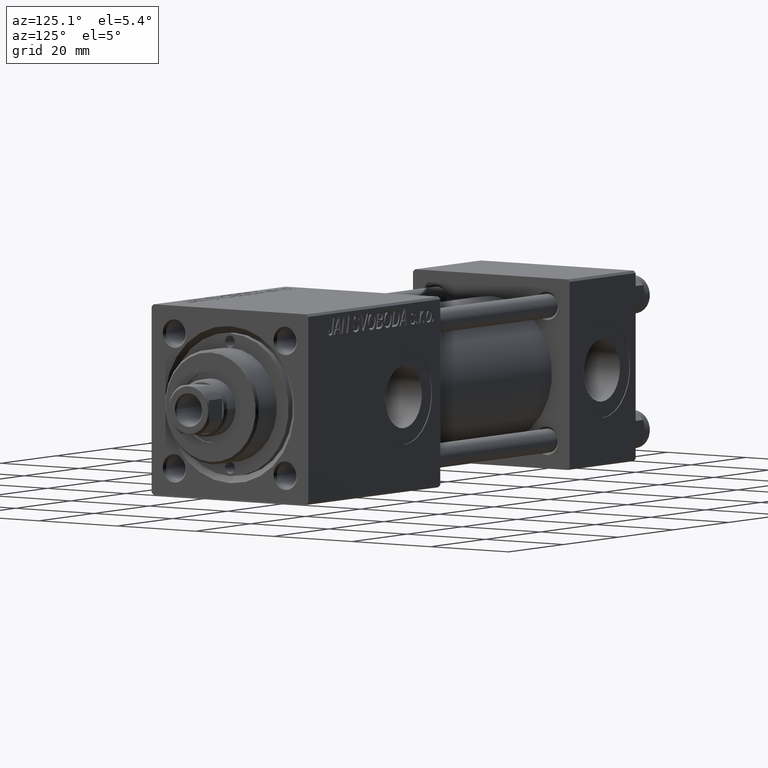
[diagram: clean part render]
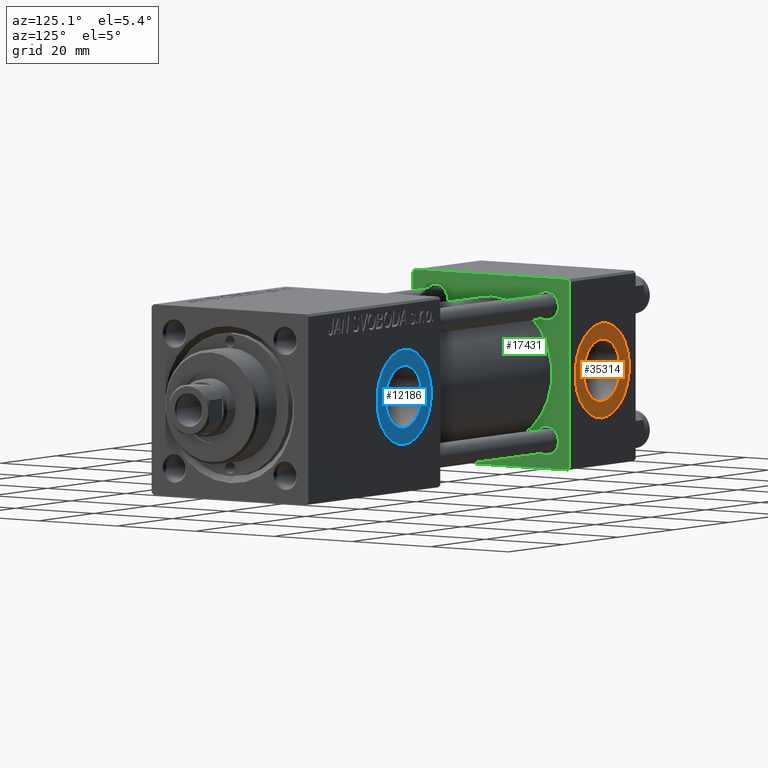
[diagram: same view with three faces highlighted in distinct colors, each labeled with its STEP entity id]
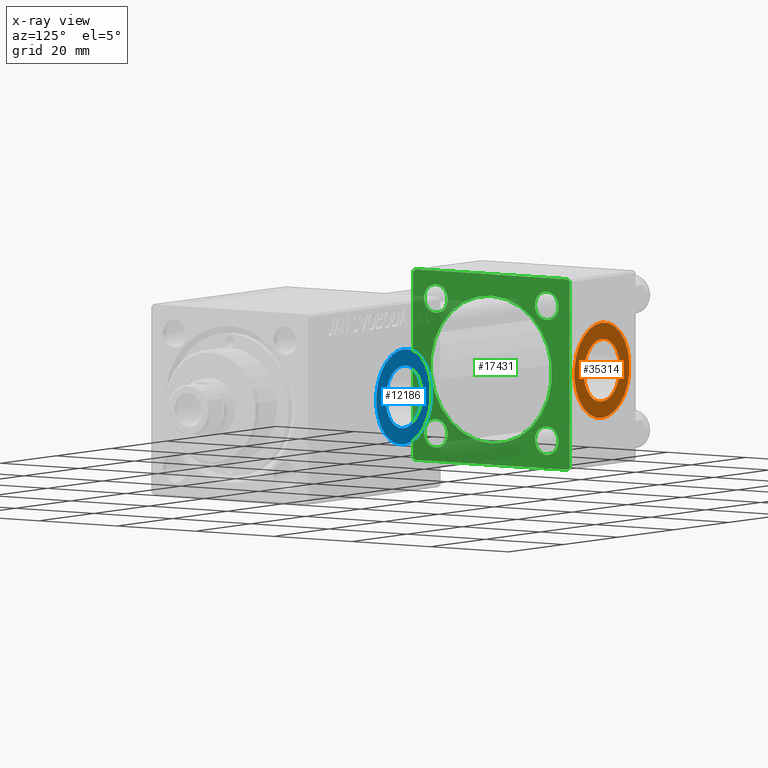
[diagram: x-ray of the same camera — body ghosted, the three highlighted faces saturated]
A machine part, auxiliary view with three faces highlighted in distinct colors.
The next image is the same camera in x-ray (body ghosted, the three faces saturated) — at least one of them is partly hidden behind the body in this view.
Their STEP definitions:

[orange] entity #35314 — the highlighted planar face has unit normal (0, 1, 0).
#311 = CARTESIAN_POINT ( 'NONE',  ( 12.00000000000000000, 19.80000000000000071, 0.000000000000000000 ) ) ;
#375 = DIRECTION ( 'NONE',  ( 0.000000000000000000, -0.000000000000000000, 1.000000000000000000 ) ) ;
#735 = CIRCLE ( 'NONE', #25903, 10.00000000000000000 ) ;
#3530 = CARTESIAN_POINT ( 'NONE',  ( 12.00000000000000000, 19.80000000000000071, 6.579999999999998295 ) ) ;
#4204 = PLANE ( 'NONE',  #6040 ) ;
#5149 = DIRECTION ( 'NONE',  ( 0.000000000000000000, 1.000000000000000000, 0.000000000000000000 ) ) ;
#6040 = AXIS2_PLACEMENT_3D ( 'NONE', #19723, #35227, #375 ) ;
#6391 = CARTESIAN_POINT ( 'NONE',  ( 12.00000000000000000, 19.80000000000000071, 10.00000000000000000 ) ) ;
#7938 = DIRECTION ( 'NONE',  ( 0.000000000000000000, 1.000000000000000000, 0.000000000000000000 ) ) ;
#8008 = EDGE_LOOP ( 'NONE', ( #37336, #43936 ) ) ;
#8931 = AXIS2_PLACEMENT_3D ( 'NONE', #14570, #18645, #15072 ) ;
#9729 = CIRCLE ( 'NONE', #8931, 6.579999999999998295 ) ;
#13494 = ORIENTED_EDGE ( 'NONE', *, *, #50130, .T. ) ;
#14003 = EDGE_CURVE ( 'NONE', #29084, #22923, #21956, .T. ) ;
#14570 = CARTESIAN_POINT ( 'NONE',  ( 12.00000000000000000, 19.80000000000000071, 0.000000000000000000 ) ) ;
#14770 = EDGE_CURVE ( 'NONE', #22923, #29084, #9729, .T. ) ;
#15072 = DIRECTION ( 'NONE',  ( 0.000000000000000000, 0.000000000000000000, 1.000000000000000000 ) ) ;
#18645 = DIRECTION ( 'NONE',  ( 0.000000000000000000, 1.000000000000000000, 0.000000000000000000 ) ) ;
#19723 = CARTESIAN_POINT ( 'NONE',  ( 12.00000000000000000, 19.80000000000000071, 0.000000000000000000 ) ) ;
#19862 = CIRCLE ( 'NONE', #26346, 10.00000000000000000 ) ;
#20550 = CARTESIAN_POINT ( 'NONE',  ( 12.00000000000000178, 19.80000000000000071, -10.00000000000000000 ) ) ;
#21419 = CARTESIAN_POINT ( 'NONE',  ( 12.00000000000000000, 19.80000000000000071, 0.000000000000000000 ) ) ;
#21953 = ORIENTED_EDGE ( 'NONE', *, *, #34535, .T. ) ;
#21956 = CIRCLE ( 'NONE', #26823, 6.579999999999998295 ) ;
#22923 = VERTEX_POINT ( 'NONE', #40389 ) ;
#23475 = DIRECTION ( 'NONE',  ( 0.000000000000000000, 0.000000000000000000, 1.000000000000000000 ) ) ;
#25903 = AXIS2_PLACEMENT_3D ( 'NONE', #21419, #5149, #32111 ) ;
#26346 = AXIS2_PLACEMENT_3D ( 'NONE', #46034, #38920, #41972 ) ;
#26823 = AXIS2_PLACEMENT_3D ( 'NONE', #311, #7938, #23475 ) ;
#29084 = VERTEX_POINT ( 'NONE', #3530 ) ;
#32111 = DIRECTION ( 'NONE',  ( 0.000000000000000000, 0.000000000000000000, 1.000000000000000000 ) ) ;
#34535 = EDGE_CURVE ( 'NONE', #45143, #48870, #19862, .T. ) ;
#35227 = DIRECTION ( 'NONE',  ( 0.000000000000000000, 1.000000000000000000, 0.000000000000000000 ) ) ;
#35314 = ADVANCED_FACE ( 'NONE', ( #43346, #42593 ), #4204, .T. ) ;
#37336 = ORIENTED_EDGE ( 'NONE', *, *, #14003, .F. ) ;
#38920 = DIRECTION ( 'NONE',  ( 0.000000000000000000, 1.000000000000000000, 0.000000000000000000 ) ) ;
#40389 = CARTESIAN_POINT ( 'NONE',  ( 12.00000000000000000, 19.80000000000000071, -6.579999999999998295 ) ) ;
#41972 = DIRECTION ( 'NONE',  ( 0.000000000000000000, 0.000000000000000000, 1.000000000000000000 ) ) ;
#42593 = FACE_OUTER_BOUND ( 'NONE', #49129, .T. ) ;
#43346 = FACE_BOUND ( 'NONE', #8008, .T. ) ;
#43936 = ORIENTED_EDGE ( 'NONE', *, *, #14770, .F. ) ;
#45143 = VERTEX_POINT ( 'NONE', #20550 ) ;
#46034 = CARTESIAN_POINT ( 'NONE',  ( 12.00000000000000000, 19.80000000000000071, 0.000000000000000000 ) ) ;
#48870 = VERTEX_POINT ( 'NONE', #6391 ) ;
#49129 = EDGE_LOOP ( 'NONE', ( #13494, #21953 ) ) ;
#50130 = EDGE_CURVE ( 'NONE', #48870, #45143, #735, .T. ) ;

[blue] entity #12186 — the highlighted planar face has unit normal (0, 1, 0).
#310 = VERTEX_POINT ( 'NONE', #9725 ) ;
#1794 = ORIENTED_EDGE ( 'NONE', *, *, #30656, .F. ) ;
#2294 = AXIS2_PLACEMENT_3D ( 'NONE', #37583, #7056, #14683 ) ;
#2331 = CARTESIAN_POINT ( 'NONE',  ( 84.00000000000000000, 19.79999999999999716, -6.580000000001541061 ) ) ;
#4337 = CARTESIAN_POINT ( 'NONE',  ( 84.00000000000000000, 19.79999999999999716, 0.000000000000000000 ) ) ;
#4845 = EDGE_CURVE ( 'NONE', #26441, #50228, #16785, .T. ) ;
#7056 = DIRECTION ( 'NONE',  ( 0.000000000000000000, 1.000000000000000000, 0.000000000000000000 ) ) ;
#7384 = CIRCLE ( 'NONE', #13867, 10.00000000000153300 ) ;
#8352 = ORIENTED_EDGE ( 'NONE', *, *, #20276, .T. ) ;
#9419 = EDGE_CURVE ( 'NONE', #310, #31996, #43713, .T. ) ;
#9725 = CARTESIAN_POINT ( 'NONE',  ( 84.00000000000000000, 19.79999999999999716, -10.00000000000153300 ) ) ;
#11791 = DIRECTION ( 'NONE',  ( 0.000000000000000000, 1.000000000000000000, 0.000000000000000000 ) ) ;
#12186 = ADVANCED_FACE ( 'NONE', ( #46240, #30727 ), #50297, .T. ) ;
#12849 = DIRECTION ( 'NONE',  ( 0.000000000000000000, 1.000000000000000000, 0.000000000000000000 ) ) ;
#13343 = CARTESIAN_POINT ( 'NONE',  ( 84.00000000000000000, 19.79999999999999716, 0.000000000000000000 ) ) ;
#13867 = AXIS2_PLACEMENT_3D ( 'NONE', #13343, #12849, #20502 ) ;
#14683 = DIRECTION ( 'NONE',  ( 0.000000000000000000, 0.000000000000000000, 1.000000000000000000 ) ) ;
#14839 = AXIS2_PLACEMENT_3D ( 'NONE', #34437, #11791, #26814 ) ;
#16031 = DIRECTION ( 'NONE',  ( 0.000000000000000000, 1.000000000000000000, 0.000000000000000000 ) ) ;
#16785 = CIRCLE ( 'NONE', #43578, 6.580000000001541061 ) ;
#20276 = EDGE_CURVE ( 'NONE', #31996, #310, #7384, .T. ) ;
#20502 = DIRECTION ( 'NONE',  ( 0.000000000000000000, 0.000000000000000000, 1.000000000000000000 ) ) ;
#26046 = EDGE_LOOP ( 'NONE', ( #44237, #1794 ) ) ;
#26441 = VERTEX_POINT ( 'NONE', #29216 ) ;
#26814 = DIRECTION ( 'NONE',  ( 0.000000000000000000, 0.000000000000000000, 1.000000000000000000 ) ) ;
#26979 = CARTESIAN_POINT ( 'NONE',  ( 84.00000000000000000, 19.79999999999999716, 10.00000000000153300 ) ) ;
#27418 = CARTESIAN_POINT ( 'NONE',  ( 84.00000000000000000, 19.79999999999999716, 0.000000000000000000 ) ) ;
#29216 = CARTESIAN_POINT ( 'NONE',  ( 84.00000000000000000, 19.79999999999999716, 6.580000000001541061 ) ) ;
#30656 = EDGE_CURVE ( 'NONE', #50228, #26441, #38407, .T. ) ;
#30727 = FACE_OUTER_BOUND ( 'NONE', #39461, .T. ) ;
#31996 = VERTEX_POINT ( 'NONE', #26979 ) ;
#33218 = AXIS2_PLACEMENT_3D ( 'NONE', #27418, #34295, #49794 ) ;
#34295 = DIRECTION ( 'NONE',  ( 0.000000000000000000, 1.000000000000000000, 0.000000000000000000 ) ) ;
#34437 = CARTESIAN_POINT ( 'NONE',  ( 84.00000000000000000, 19.79999999999999716, 0.000000000000000000 ) ) ;
#37583 = CARTESIAN_POINT ( 'NONE',  ( 84.00000000000000000, 19.79999999999999716, 0.000000000000000000 ) ) ;
#38407 = CIRCLE ( 'NONE', #14839, 6.580000000001541061 ) ;
#39461 = EDGE_LOOP ( 'NONE', ( #8352, #42309 ) ) ;
#40154 = DIRECTION ( 'NONE',  ( 0.000000000000000000, 0.000000000000000000, 1.000000000000000000 ) ) ;
#42309 = ORIENTED_EDGE ( 'NONE', *, *, #9419, .T. ) ;
#43578 = AXIS2_PLACEMENT_3D ( 'NONE', #4337, #16031, #40154 ) ;
#43713 = CIRCLE ( 'NONE', #2294, 10.00000000000153300 ) ;
#44237 = ORIENTED_EDGE ( 'NONE', *, *, #4845, .F. ) ;
#46240 = FACE_BOUND ( 'NONE', #26046, .T. ) ;
#49794 = DIRECTION ( 'NONE',  ( 0.000000000000000000, -0.000000000000000000, 1.000000000000000000 ) ) ;
#50228 = VERTEX_POINT ( 'NONE', #2331 ) ;
#50297 = PLANE ( 'NONE',  #33218 ) ;

[green] entity #17431 — the highlighted planar face has unit normal (-1, 0, 0).
#701 = DIRECTION ( 'NONE',  ( 0.000000000000000000, 0.000000000000000000, 1.000000000000000000 ) ) ;
#1073 = CARTESIAN_POINT ( 'NONE',  ( 24.00000000000000000, -14.14999999999999503, -14.15000000000000391 ) ) ;
#1614 = CIRCLE ( 'NONE', #13021, 2.999999999999973355 ) ;
#1698 = DIRECTION ( 'NONE',  ( -1.000000000000000000, -0.000000000000000000, -0.000000000000000000 ) ) ;
#1701 = VERTEX_POINT ( 'NONE', #5565 ) ;
#1783 = VECTOR ( 'NONE', #14139, 1000.000000000000114 ) ;
#2804 = FACE_BOUND ( 'NONE', #34736, .T. ) ;
#2846 = DIRECTION ( 'NONE',  ( -1.000000000000000000, -0.000000000000000000, -0.000000000000000000 ) ) ;
#3393 = AXIS2_PLACEMENT_3D ( 'NONE', #30706, #6804, #33762 ) ;
#4054 = CARTESIAN_POINT ( 'NONE',  ( 24.00000000000000000, -14.14999999999999503, 11.15000000000000036 ) ) ;
#5107 = ORIENTED_EDGE ( 'NONE', *, *, #18325, .F. ) ;
#5416 = ORIENTED_EDGE ( 'NONE', *, *, #8101, .T. ) ;
#5565 = CARTESIAN_POINT ( 'NONE',  ( 24.00000000000000000, -20.00000000000000000, -19.49999999999999645 ) ) ;
#5729 = ORIENTED_EDGE ( 'NONE', *, *, #15577, .T. ) ;
#5783 = DIRECTION ( 'NONE',  ( 0.000000000000000000, 0.000000000000000000, 1.000000000000000000 ) ) ;
#5959 = ORIENTED_EDGE ( 'NONE', *, *, #17569, .T. ) ;
#6006 = LINE ( 'NONE', #33219, #1783 ) ;
#6374 = EDGE_CURVE ( 'NONE', #13730, #45378, #19929, .T. ) ;
#6804 = DIRECTION ( 'NONE',  ( -1.000000000000000000, -0.000000000000000000, -0.000000000000000000 ) ) ;
#6873 = FACE_OUTER_BOUND ( 'NONE', #21938, .T. ) ;
#6905 = DIRECTION ( 'NONE',  ( 0.000000000000000000, 0.000000000000000000, 1.000000000000000000 ) ) ;
#7128 = FACE_BOUND ( 'NONE', #19708, .T. ) ;
#7394 = DIRECTION ( 'NONE',  ( 0.000000000000000000, 0.000000000000000000, -1.000000000000000000 ) ) ;
#7409 = CARTESIAN_POINT ( 'NONE',  ( 24.00000000000000000, -2.602085213965210642E-15, 0.000000000000000000 ) ) ;
#7622 = FACE_BOUND ( 'NONE', #12299, .T. ) ;
#7667 = VERTEX_POINT ( 'NONE', #19926 ) ;
#7707 = VERTEX_POINT ( 'NONE', #43305 ) ;
#7915 = EDGE_CURVE ( 'NONE', #15917, #16160, #30559, .T. ) ;
#8101 = EDGE_CURVE ( 'NONE', #7667, #44547, #36320, .T. ) ;
#8317 = ORIENTED_EDGE ( 'NONE', *, *, #7915, .T. ) ;
#8930 = CIRCLE ( 'NONE', #15452, 15.50000000000000000 ) ;
#9110 = AXIS2_PLACEMENT_3D ( 'NONE', #11285, #27304, #34179 ) ;
#9323 = CARTESIAN_POINT ( 'NONE',  ( 24.00000000000000000, 14.14999999999999858, 14.15000000000000036 ) ) ;
#9479 = VECTOR ( 'NONE', #11289, 999.9999999999998863 ) ;
#11213 = LINE ( 'NONE', #15024, #40708 ) ;
#11285 = CARTESIAN_POINT ( 'NONE',  ( 24.00000000000000000, -14.14999999999999503, 14.15000000000000391 ) ) ;
#11289 = DIRECTION ( 'NONE',  ( 0.000000000000000000, -0.7071067811865425767, 0.7071067811865525687 ) ) ;
#11448 = DIRECTION ( 'NONE',  ( -1.000000000000000000, 0.000000000000000000, -0.000000000000000000 ) ) ;
#11490 = VERTEX_POINT ( 'NONE', #21511 ) ;
#12299 = EDGE_LOOP ( 'NONE', ( #42506, #5729 ) ) ;
#12374 = CIRCLE ( 'NONE', #9110, 3.000000000000004441 ) ;
#12415 = DIRECTION ( 'NONE',  ( 0.000000000000000000, 8.673617379884036705E-17, -1.000000000000000000 ) ) ;
#12626 = VERTEX_POINT ( 'NONE', #13309 ) ;
#13021 = AXIS2_PLACEMENT_3D ( 'NONE', #9323, #1698, #5783 ) ;
#13289 = EDGE_LOOP ( 'NONE', ( #5959, #28803 ) ) ;
#13309 = CARTESIAN_POINT ( 'NONE',  ( 24.00000000000000000, -14.14999999999999503, -11.15000000000000036 ) ) ;
#13413 = CARTESIAN_POINT ( 'NONE',  ( 24.00000000000000000, 20.00000000000000000, 20.00000000000000000 ) ) ;
#13730 = VERTEX_POINT ( 'NONE', #50207 ) ;
#14139 = DIRECTION ( 'NONE',  ( -0.000000000000000000, -0.7071067811865500152, -0.7071067811865451302 ) ) ;
#14285 = DIRECTION ( 'NONE',  ( 0.000000000000000000, 0.000000000000000000, 1.000000000000000000 ) ) ;
#15024 = CARTESIAN_POINT ( 'NONE',  ( 24.00000000000000000, 20.00000000000000000, 20.00000000000000000 ) ) ;
#15452 = AXIS2_PLACEMENT_3D ( 'NONE', #7409, #34626, #6905 ) ;
#15520 = VECTOR ( 'NONE', #45640, 1000.000000000000000 ) ;
#15577 = EDGE_CURVE ( 'NONE', #12626, #22547, #16288, .T. ) ;
#15726 = CARTESIAN_POINT ( 'NONE',  ( 24.00000000000000000, -14.14999999999999503, 14.15000000000000391 ) ) ;
#15917 = VERTEX_POINT ( 'NONE', #25311 ) ;
#16160 = VERTEX_POINT ( 'NONE', #50144 ) ;
#16212 = CARTESIAN_POINT ( 'NONE',  ( 24.00000000000000000, 20.00000000000000000, -20.00000000000000711 ) ) ;
#16288 = CIRCLE ( 'NONE', #33215, 3.000000000000004441 ) ;
#16834 = DIRECTION ( 'NONE',  ( 0.000000000000000000, 0.000000000000000000, 1.000000000000000000 ) ) ;
#16993 = DIRECTION ( 'NONE',  ( -1.000000000000000000, -0.000000000000000000, -0.000000000000000000 ) ) ;
#17289 = CIRCLE ( 'NONE', #21335, 15.50000000000000000 ) ;
#17431 = ADVANCED_FACE ( 'NONE', ( #7622, #2804, #7128, #18318, #42722, #6873 ), #42221, .F. ) ;
#17569 = EDGE_CURVE ( 'NONE', #32170, #32059, #31669, .T. ) ;
#17852 = DIRECTION ( 'NONE',  ( 1.000000000000000000, 0.000000000000000000, 0.000000000000000000 ) ) ;
#18106 = CARTESIAN_POINT ( 'NONE',  ( 24.00000000000000000, -2.602085213965210642E-15, 0.000000000000000000 ) ) ;
#18318 = FACE_BOUND ( 'NONE', #13289, .T. ) ;
#18325 = EDGE_CURVE ( 'NONE', #11490, #38963, #8930, .T. ) ;
#18386 = VERTEX_POINT ( 'NONE', #43012 ) ;
#18956 = EDGE_CURVE ( 'NONE', #32059, #32170, #1614, .T. ) ;
#19431 = CARTESIAN_POINT ( 'NONE',  ( 24.00000000000000000, 19.50000000000000000, 20.00000000000000000 ) ) ;
#19708 = EDGE_LOOP ( 'NONE', ( #20244, #38800 ) ) ;
#19926 = CARTESIAN_POINT ( 'NONE',  ( 24.00000000000000000, 14.14999999999999858, -17.14999999999997726 ) ) ;
#19929 = LINE ( 'NONE', #19431, #9479 ) ;
#20034 = LINE ( 'NONE', #16212, #31146 ) ;
#20244 = ORIENTED_EDGE ( 'NONE', *, *, #29826, .T. ) ;
#20405 = EDGE_CURVE ( 'NONE', #1701, #28661, #41072, .T. ) ;
#21335 = AXIS2_PLACEMENT_3D ( 'NONE', #18106, #17852, #14285 ) ;
#21341 = CARTESIAN_POINT ( 'NONE',  ( 24.00000000000000000, 14.14999999999999858, 11.15000000000002700 ) ) ;
#21511 = CARTESIAN_POINT ( 'NONE',  ( 24.00000000000000000, -7.038826752868131828E-16, -15.50000000000000000 ) ) ;
#21938 = EDGE_LOOP ( 'NONE', ( #47199, #8317, #34388, #36692, #35175, #29597, #45021, #24052 ) ) ;
#22082 = EDGE_CURVE ( 'NONE', #44547, #7667, #48863, .T. ) ;
#22547 = VERTEX_POINT ( 'NONE', #40445 ) ;
#24052 = ORIENTED_EDGE ( 'NONE', *, *, #20405, .T. ) ;
#24060 = EDGE_CURVE ( 'NONE', #13730, #16160, #11213, .T. ) ;
#24168 = CARTESIAN_POINT ( 'NONE',  ( 24.00000000000000000, 14.14999999999999858, 17.14999999999997726 ) ) ;
#24616 = CARTESIAN_POINT ( 'NONE',  ( 24.00000000000000000, -20.00000000000000355, 19.99999999999998934 ) ) ;
#25145 = DIRECTION ( 'NONE',  ( 0.000000000000000000, 0.000000000000000000, 1.000000000000000000 ) ) ;
#25311 = CARTESIAN_POINT ( 'NONE',  ( 24.00000000000000000, 19.50000000000000711, -20.00000000000000711 ) ) ;
#25647 = VECTOR ( 'NONE', #28947, 1000.000000000000000 ) ;
#27075 = ORIENTED_EDGE ( 'NONE', *, *, #30897, .F. ) ;
#27304 = DIRECTION ( 'NONE',  ( -1.000000000000000000, -0.000000000000000000, -0.000000000000000000 ) ) ;
#27920 = DIRECTION ( 'NONE',  ( -1.000000000000000000, -0.000000000000000000, -0.000000000000000000 ) ) ;
#28491 = DIRECTION ( 'NONE',  ( 0.000000000000000000, 0.000000000000000000, 1.000000000000000000 ) ) ;
#28661 = VERTEX_POINT ( 'NONE', #29613 ) ;
#28803 = ORIENTED_EDGE ( 'NONE', *, *, #18956, .T. ) ;
#28947 = DIRECTION ( 'NONE',  ( 0.000000000000000000, -1.000000000000000000, -2.602085213965210149E-16 ) ) ;
#29008 = CARTESIAN_POINT ( 'NONE',  ( 24.00000000000000000, -2.602085213965210642E-15, 15.50000000000000000 ) ) ;
#29465 = EDGE_CURVE ( 'NONE', #18386, #35729, #6006, .T. ) ;
#29597 = ORIENTED_EDGE ( 'NONE', *, *, #29465, .T. ) ;
#29613 = CARTESIAN_POINT ( 'NONE',  ( 24.00000000000000000, -19.50000000000000711, -20.00000000000000000 ) ) ;
#29826 = EDGE_CURVE ( 'NONE', #50305, #7707, #12374, .T. ) ;
#30559 = LINE ( 'NONE', #34377, #36349 ) ;
#30706 = CARTESIAN_POINT ( 'NONE',  ( 24.00000000000000000, 14.14999999999999858, -14.15000000000000036 ) ) ;
#30897 = EDGE_CURVE ( 'NONE', #38963, #11490, #17289, .T. ) ;
#31146 = VECTOR ( 'NONE', #47236, 1000.000000000000000 ) ;
#31669 = CIRCLE ( 'NONE', #35734, 2.999999999999973355 ) ;
#32059 = VERTEX_POINT ( 'NONE', #24168 ) ;
#32170 = VERTEX_POINT ( 'NONE', #21341 ) ;
#32330 = EDGE_CURVE ( 'NONE', #15917, #28661, #20034, .T. ) ;
#32793 = AXIS2_PLACEMENT_3D ( 'NONE', #15726, #27920, #701 ) ;
#33215 = AXIS2_PLACEMENT_3D ( 'NONE', #37699, #2846, #33880 ) ;
#33219 = CARTESIAN_POINT ( 'NONE',  ( 24.00000000000000000, -20.00000000000000355, 19.49999999999998224 ) ) ;
#33258 = EDGE_CURVE ( 'NONE', #7707, #50305, #46608, .T. ) ;
#33762 = DIRECTION ( 'NONE',  ( 0.000000000000000000, 0.000000000000000000, 1.000000000000000000 ) ) ;
#33838 = DIRECTION ( 'NONE',  ( -0.000000000000000000, 0.000000000000000000, 1.000000000000000000 ) ) ;
#33880 = DIRECTION ( 'NONE',  ( 0.000000000000000000, 0.000000000000000000, 1.000000000000000000 ) ) ;
#34179 = DIRECTION ( 'NONE',  ( 0.000000000000000000, 0.000000000000000000, 1.000000000000000000 ) ) ;
#34377 = CARTESIAN_POINT ( 'NONE',  ( 24.00000000000000000, 20.00000000000000000, -19.50000000000002132 ) ) ;
#34388 = ORIENTED_EDGE ( 'NONE', *, *, #24060, .F. ) ;
#34626 = DIRECTION ( 'NONE',  ( 1.000000000000000000, 0.000000000000000000, 0.000000000000000000 ) ) ;
#34627 = CARTESIAN_POINT ( 'NONE',  ( 24.00000000000000000, 14.14999999999999858, -14.15000000000000036 ) ) ;
#34736 = EDGE_LOOP ( 'NONE', ( #5416, #48813 ) ) ;
#35175 = ORIENTED_EDGE ( 'NONE', *, *, #39276, .T. ) ;
#35568 = LINE ( 'NONE', #24616, #48426 ) ;
#35729 = VERTEX_POINT ( 'NONE', #43535 ) ;
#35734 = AXIS2_PLACEMENT_3D ( 'NONE', #48520, #16993, #25145 ) ;
#36320 = CIRCLE ( 'NONE', #44432, 2.999999999999976463 ) ;
#36349 = VECTOR ( 'NONE', #49113, 1000.000000000000000 ) ;
#36692 = ORIENTED_EDGE ( 'NONE', *, *, #6374, .T. ) ;
#37560 = DIRECTION ( 'NONE',  ( -1.000000000000000000, -0.000000000000000000, -0.000000000000000000 ) ) ;
#37686 = CARTESIAN_POINT ( 'NONE',  ( 24.00000000000000000, 14.14999999999999858, -11.15000000000002700 ) ) ;
#37699 = CARTESIAN_POINT ( 'NONE',  ( 24.00000000000000000, -14.14999999999999503, -14.15000000000000391 ) ) ;
#38800 = ORIENTED_EDGE ( 'NONE', *, *, #33258, .T. ) ;
#38963 = VERTEX_POINT ( 'NONE', #29008 ) ;
#39276 = EDGE_CURVE ( 'NONE', #45378, #18386, #44694, .T. ) ;
#39995 = DIRECTION ( 'NONE',  ( -1.000000000000000000, -0.000000000000000000, -0.000000000000000000 ) ) ;
#40445 = CARTESIAN_POINT ( 'NONE',  ( 24.00000000000000000, -14.14999999999999503, -17.15000000000000924 ) ) ;
#40652 = EDGE_CURVE ( 'NONE', #35729, #1701, #35568, .T. ) ;
#40708 = VECTOR ( 'NONE', #7394, 1000.000000000000000 ) ;
#41072 = LINE ( 'NONE', #49197, #15520 ) ;
#42130 = CARTESIAN_POINT ( 'NONE',  ( 24.00000000000000000, 19.50000000000000000, 20.00000000000000000 ) ) ;
#42221 = PLANE ( 'NONE',  #45460 ) ;
#42506 = ORIENTED_EDGE ( 'NONE', *, *, #50124, .T. ) ;
#42722 = FACE_BOUND ( 'NONE', #47326, .T. ) ;
#43012 = CARTESIAN_POINT ( 'NONE',  ( 24.00000000000000000, -19.49999999999999289, 19.99999999999998934 ) ) ;
#43305 = CARTESIAN_POINT ( 'NONE',  ( 24.00000000000000000, -14.14999999999999503, 17.15000000000000924 ) ) ;
#43535 = CARTESIAN_POINT ( 'NONE',  ( 24.00000000000000000, -20.00000000000000355, 19.49999999999998224 ) ) ;
#43773 = CIRCLE ( 'NONE', #50245, 3.000000000000004441 ) ;
#44432 = AXIS2_PLACEMENT_3D ( 'NONE', #34627, #37560, #28491 ) ;
#44547 = VERTEX_POINT ( 'NONE', #37686 ) ;
#44694 = LINE ( 'NONE', #13413, #25647 ) ;
#45021 = ORIENTED_EDGE ( 'NONE', *, *, #40652, .T. ) ;
#45378 = VERTEX_POINT ( 'NONE', #42130 ) ;
#45460 = AXIS2_PLACEMENT_3D ( 'NONE', #49337, #11448, #33838 ) ;
#45640 = DIRECTION ( 'NONE',  ( 0.000000000000000000, 0.7071067811865401342, -0.7071067811865549002 ) ) ;
#46608 = CIRCLE ( 'NONE', #32793, 3.000000000000004441 ) ;
#47199 = ORIENTED_EDGE ( 'NONE', *, *, #32330, .F. ) ;
#47236 = DIRECTION ( 'NONE',  ( 0.000000000000000000, -1.000000000000000000, 1.734723475976807094E-16 ) ) ;
#47326 = EDGE_LOOP ( 'NONE', ( #27075, #5107 ) ) ;
#48426 = VECTOR ( 'NONE', #12415, 1000.000000000000000 ) ;
#48520 = CARTESIAN_POINT ( 'NONE',  ( 24.00000000000000000, 14.14999999999999858, 14.15000000000000036 ) ) ;
#48813 = ORIENTED_EDGE ( 'NONE', *, *, #22082, .T. ) ;
#48863 = CIRCLE ( 'NONE', #3393, 2.999999999999976463 ) ;
#49113 = DIRECTION ( 'NONE',  ( -0.000000000000000000, 0.7071067811865524577, 0.7071067811865426878 ) ) ;
#49197 = CARTESIAN_POINT ( 'NONE',  ( 24.00000000000000000, -19.50000000000000711, -20.00000000000000000 ) ) ;
#49337 = CARTESIAN_POINT ( 'NONE',  ( 24.00000000000000000, 0.000000000000000000, 0.000000000000000000 ) ) ;
#50124 = EDGE_CURVE ( 'NONE', #22547, #12626, #43773, .T. ) ;
#50144 = CARTESIAN_POINT ( 'NONE',  ( 24.00000000000000000, 20.00000000000000000, -19.50000000000002132 ) ) ;
#50207 = CARTESIAN_POINT ( 'NONE',  ( 24.00000000000000000, 20.00000000000000000, 19.49999999999999289 ) ) ;
#50245 = AXIS2_PLACEMENT_3D ( 'NONE', #1073, #39995, #16834 ) ;
#50305 = VERTEX_POINT ( 'NONE', #4054 ) ;